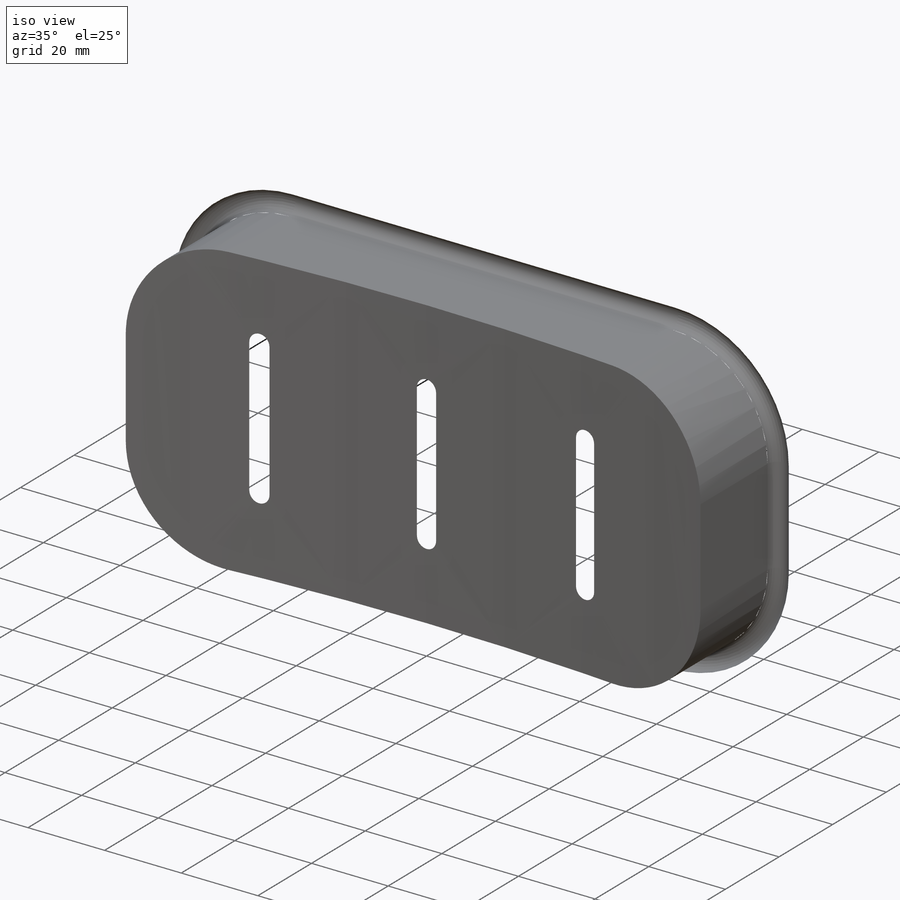
[diagram: iso view]
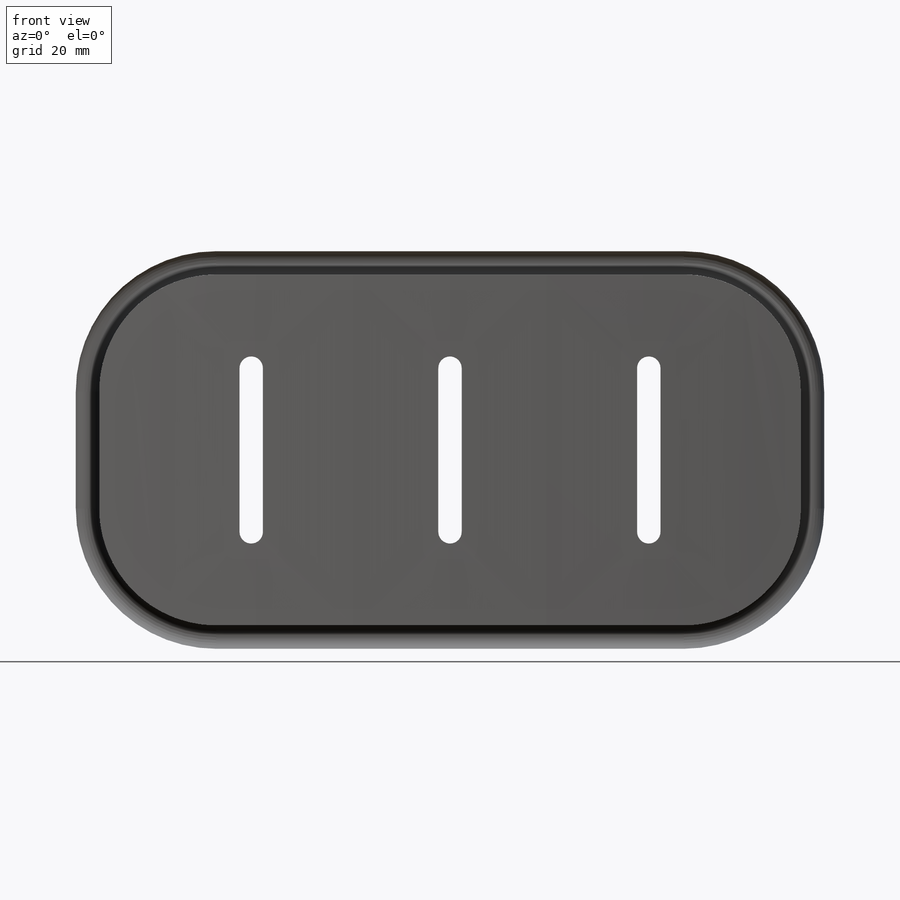
[diagram: front view]
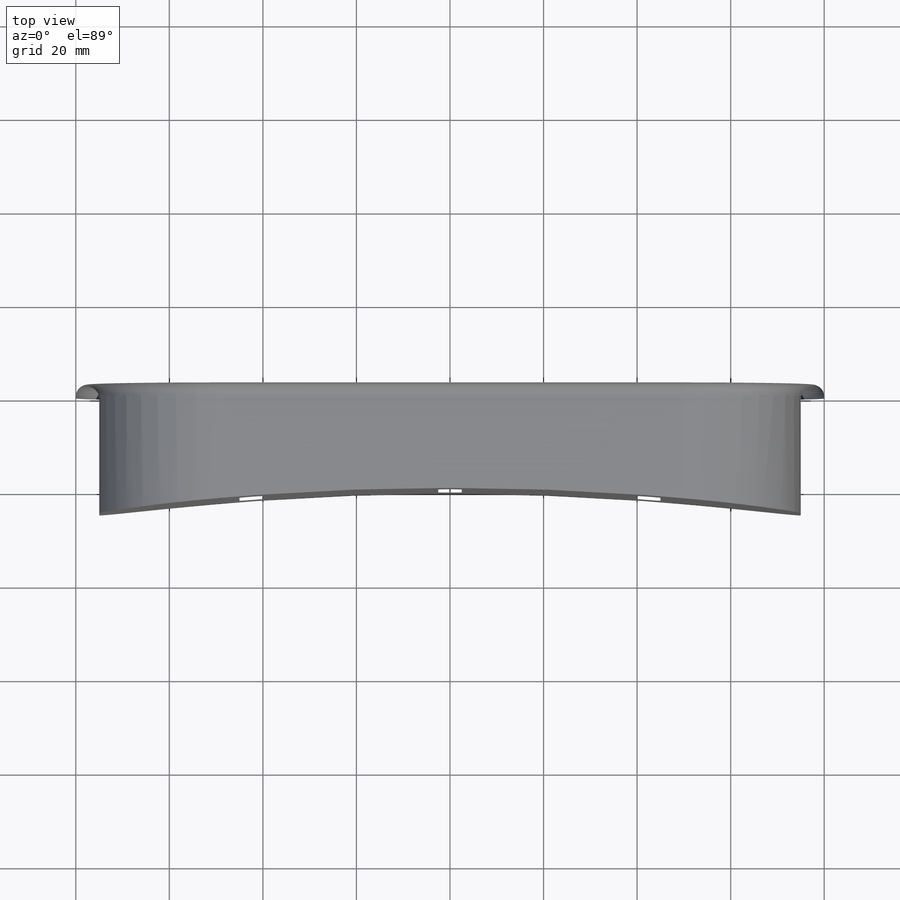
[diagram: top view]
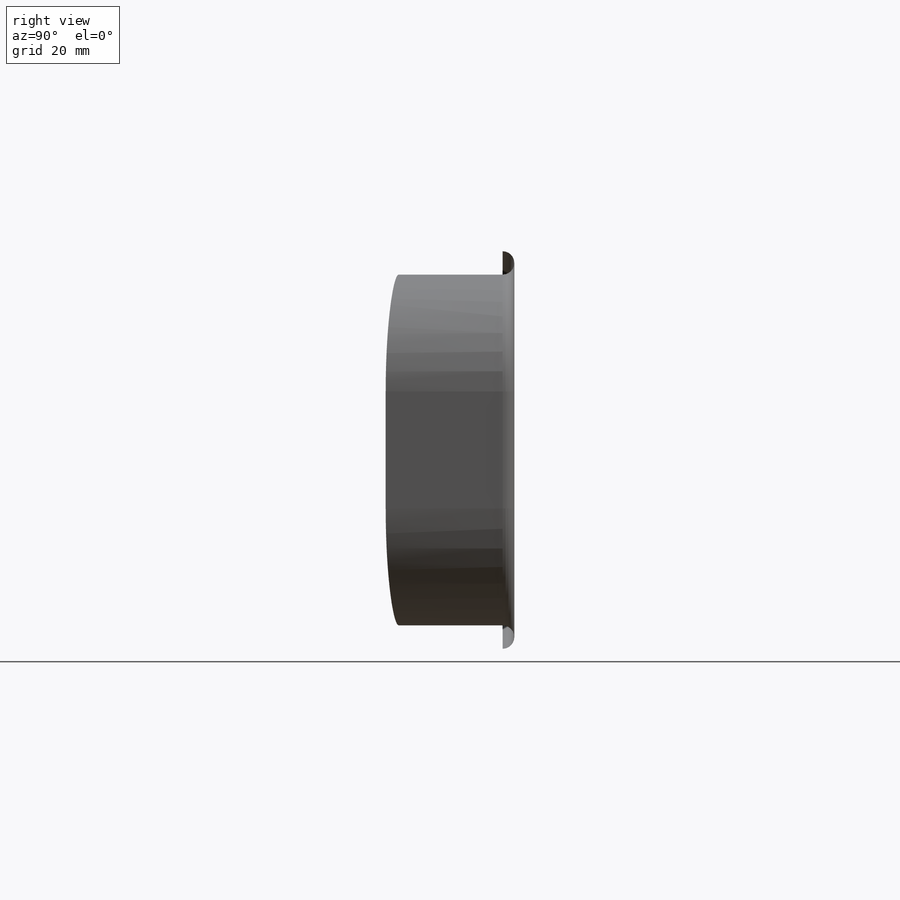
[diagram: right view]
SOLIDWORKS PART (.sldprt)
format: sldprt  version: not decoded by parser v0  size: 273,920 bytes
history: native  units: mm
features: sketch x5, fillet x4, surface_op x3, material x1 (+12 scaffold rows collapsed)
feature tree (25):
  scaffold x12  (default folders/planes/origin — collapsed)
  material  "Material <not specified>"
  sketch  "Sketch2"  dims[D1=75.0mm D2=150.0mm]
  surface_op  "Surface-Extrude1"
  sketch  "Sketch7"  dims[D1=5.0mm]
  surface_op  "Surface-Extrude4"
  fillet  "Fillet1"  Radius=25mm
  sketch  "Sketch9"  dims[c1.D7=2.5mm c1.D8=2.5mm c1.D9=2.5mm c1.D1=32.5mm c1.D2=42.5mm c1.D3=42.5mm c1.D4=5.0mm c1.D5=5.0mm c1.D6=5.0mm c2.D7=2.5mm c3.D7=2.5mm c4.D7=40.0mm c4.D8=2.5mm c5.D8=40.0mm c5.D9=40.0mm]
  surface_op  "Surface-Extrude7"
  fillet  "Surface-Trim3"  [1 undecoded]
  fillet  "Surface-Trim4"  [1 undecoded]
  fillet  "Surface-Trim5"  [1 undecoded]
  sketch  "Sketch11"  dims[D1=2.5mm]
  sketch  "Sketch12"
decode coverage: 5 of 12 modeling features carry decoded parameters
note: 3 parameter values undecoded
summary: no parameter record found for 3 features
note: suppression state not decoded; provenance and decode notes live in map.json
